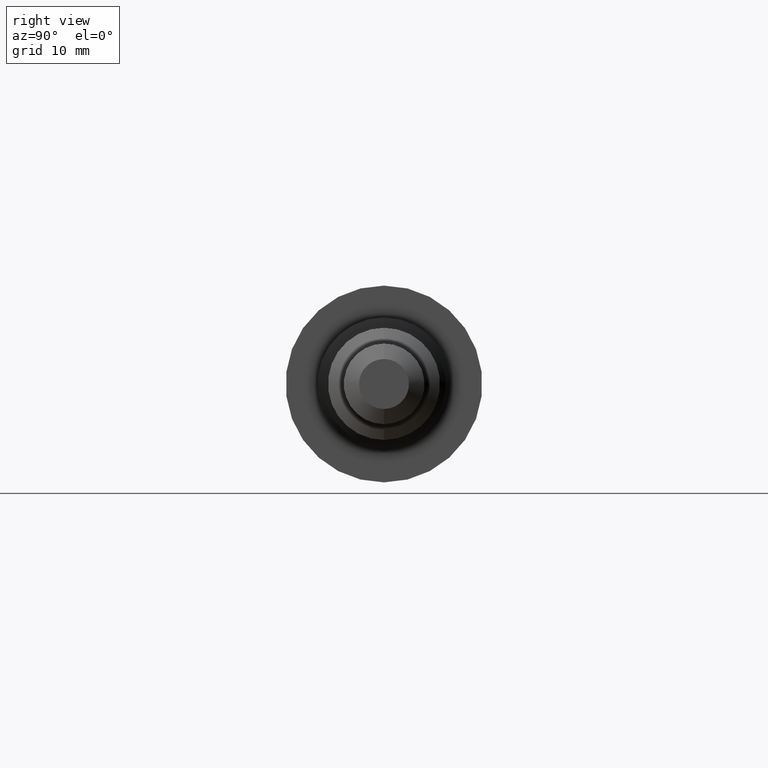
[diagram: clean part render]
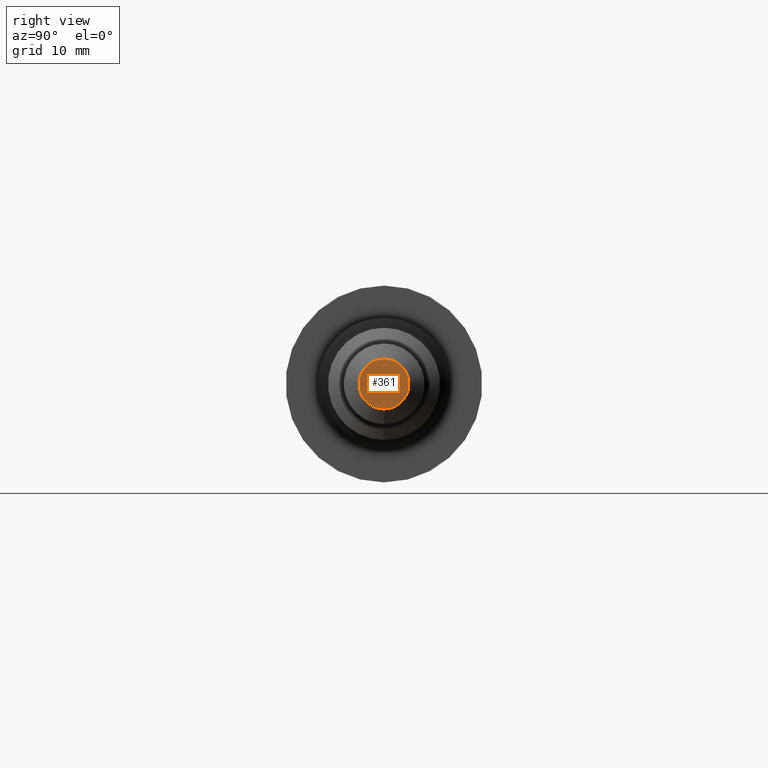
[diagram: same view with one face highlighted and labeled with its STEP entity id]
A machine part, right view. The second image highlights one B-rep face of the part: STEP entity #361.
In plain terms, the highlighted planar face has unit normal (-1, 0, -0).
Its self-contained STEP definition (entity closure, byte-faithful):
#47 = DIRECTION ( 'NONE',  ( -1.000000000000000000, -0.0000000000000000000, -0.0000000000000000000 ) ) ;
#91 = FACE_OUTER_BOUND ( 'NONE', #741, .T. ) ;
#114 = ORIENTED_EDGE ( 'NONE', *, *, #219, .F. ) ;
#219 = EDGE_CURVE ( 'NONE', #833, #493, #290, .T. ) ;
#250 = AXIS2_PLACEMENT_3D ( 'NONE', #683, #689, #289 ) ;
#266 = EDGE_CURVE ( 'NONE', #493, #833, #329, .T. ) ;
#268 = CARTESIAN_POINT ( 'NONE',  ( 4.000000000000000000, 2.361104407921024020E-17, -0.1476976122364287436 ) ) ;
#289 = DIRECTION ( 'NONE',  ( 0.0000000000000000000, 0.0000000000000000000, 1.000000000000000000 ) ) ;
#290 = CIRCLE ( 'NONE', #250, 0.1476976122364287436 ) ;
#329 = CIRCLE ( 'NONE', #637, 0.1476976122364287436 ) ;
#361 = ADVANCED_FACE ( 'NONE', ( #91 ), #779, .F. ) ;
#391 = CARTESIAN_POINT ( 'NONE',  ( 4.000000000000000000, 0.1476976122364287436, 0.0000000000000000000 ) ) ;
#395 = DIRECTION ( 'NONE',  ( -0.0000000000000000000, 0.0000000000000000000, 1.000000000000000000 ) ) ;
#464 = ORIENTED_EDGE ( 'NONE', *, *, #266, .F. ) ;
#493 = VERTEX_POINT ( 'NONE', #268 ) ;
#505 = CARTESIAN_POINT ( 'NONE',  ( 4.000000000000000000, 0.0000000000000000000, 0.1476976122364287436 ) ) ;
#575 = CARTESIAN_POINT ( 'NONE',  ( 4.000000000000000000, 0.0000000000000000000, 0.0000000000000000000 ) ) ;
#622 = AXIS2_PLACEMENT_3D ( 'NONE', #391, #838, #395 ) ;
#637 = AXIS2_PLACEMENT_3D ( 'NONE', #575, #47, #642 ) ;
#642 = DIRECTION ( 'NONE',  ( 0.0000000000000000000, 0.0000000000000000000, 1.000000000000000000 ) ) ;
#683 = CARTESIAN_POINT ( 'NONE',  ( 4.000000000000000000, 0.0000000000000000000, 0.0000000000000000000 ) ) ;
#689 = DIRECTION ( 'NONE',  ( -1.000000000000000000, -0.0000000000000000000, -0.0000000000000000000 ) ) ;
#741 = EDGE_LOOP ( 'NONE', ( #114, #464 ) ) ;
#779 = PLANE ( 'NONE',  #622 ) ;
#833 = VERTEX_POINT ( 'NONE', #505 ) ;
#838 = DIRECTION ( 'NONE',  ( -1.000000000000000000, 0.0000000000000000000, -0.0000000000000000000 ) ) ;